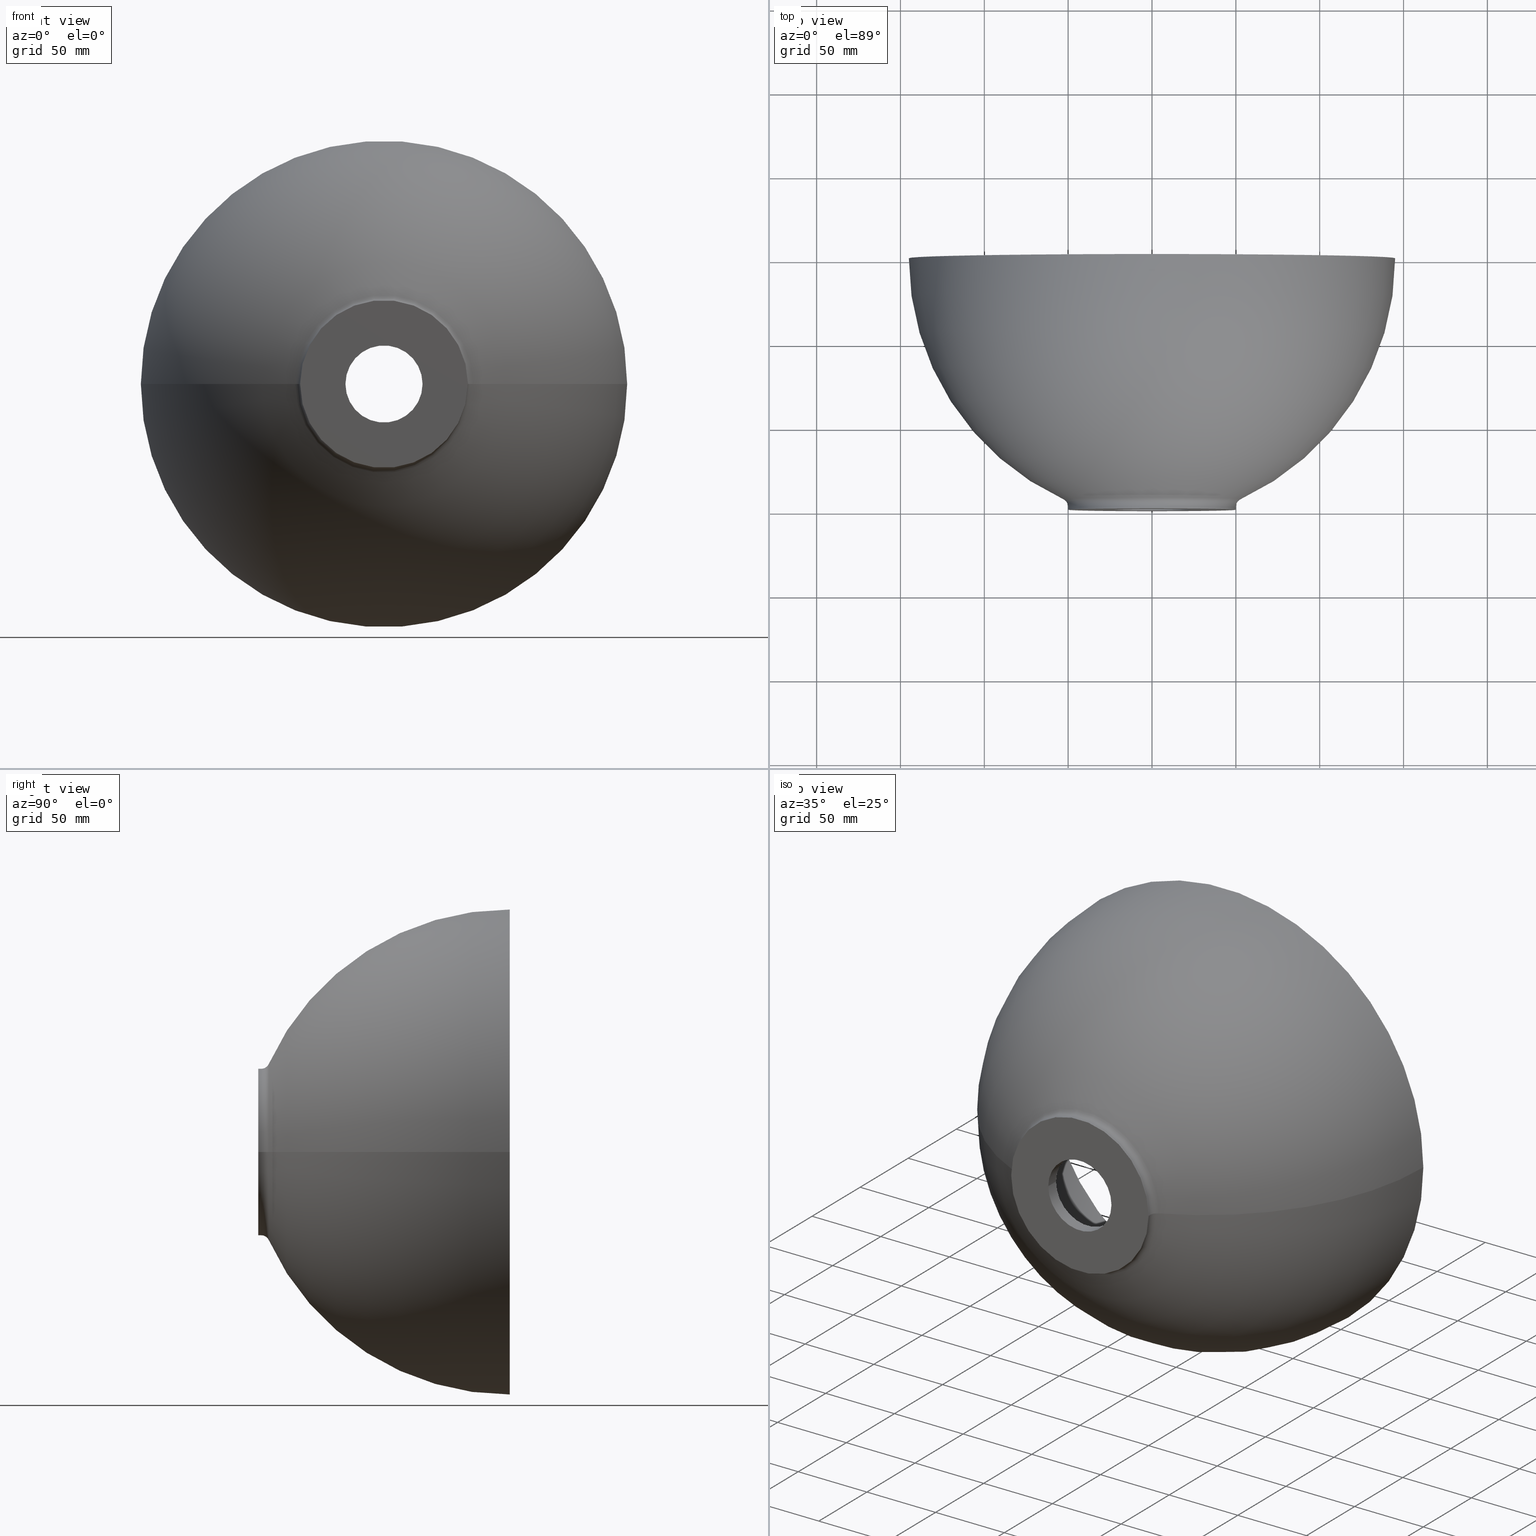
[diagram: canonical four-view strip — front | top / right | iso, engineering-drawing reading convention]
A machine part, canonical four-view strip (front | top / right | iso — engineering-drawing reading convention). The complete STEP part file that produces these views, byte-faithful:
ISO-10303-21;
HEADER;
FILE_DESCRIPTION (( 'STEP AP214' ),
    '1' );
FILE_NAME ('D781.STEP',
    '2018-06-29T09:14:27',
    ( '' ),
    ( '' ),
    'SwSTEP 2.0',
    'SolidWorks 2017',
    '' );
FILE_SCHEMA (( 'AUTOMOTIVE_DESIGN' ));
ENDSEC;

DATA;
#1 = EDGE_LOOP ( 'NONE', ( #169, #357, #145, #321 ) ) ;
#2 = FACE_OUTER_BOUND ( 'NONE', #385, .T. ) ;
#3 = DIRECTION ( 'NONE',  ( -1.104785946437366900E-016, 1.000000000000000000, -0.0000000000000000000 ) ) ;
#4 = ORIENTED_EDGE ( 'NONE', *, *, #17, .T. ) ;
#5 =( NAMED_UNIT ( * ) PLANE_ANGLE_UNIT ( ) SI_UNIT ( $, .RADIAN. ) );
#6 = PLANE ( 'NONE',  #151 ) ;
#7 = AXIS2_PLACEMENT_3D ( 'NONE', #152, #147, #189 ) ;
#8 = DIRECTION ( 'NONE',  ( -1.000000000000000000, -1.104785946437366800E-016, 0.0000000000000000000 ) ) ;
#9 = MECHANICAL_DESIGN_GEOMETRIC_PRESENTATION_REPRESENTATION (  '', ( #337 ), #137 ) ;
#10 = AXIS2_PLACEMENT_3D ( 'NONE', #72, #347, #66 ) ;
#11 = CARTESIAN_POINT ( 'NONE',  ( -2.694001388746047700E-015, 150.0000000000000300, 0.0000000000000000000 ) ) ;
#12 = DIRECTION ( 'NONE',  ( -1.000000000000000000, 0.0000000000000000000, 0.0000000000000000000 ) ) ;
#13 = CARTESIAN_POINT ( 'NONE',  ( 50.00000000000001400, 125.6151732610876800, 6.123233995736767700E-015 ) ) ;
#14 = ORIENTED_EDGE ( 'NONE', *, *, #96, .T. ) ;
#15 = DIRECTION ( 'NONE',  ( -1.104785946437366900E-016, 1.000000000000000000, -0.0000000000000000000 ) ) ;
#16 = DIRECTION ( 'NONE',  ( -1.224646799147353200E-016, -1.352972573047500600E-032, 1.000000000000000000 ) ) ;
#17 = EDGE_CURVE ( 'NONE', #97, #302, #68, .T. ) ;
#18 = CARTESIAN_POINT ( 'NONE',  ( 13.15789473684205600, 150.0000000000000000, 0.0000000000000000000 ) ) ;
#19 = CARTESIAN_POINT ( 'NONE',  ( 0.0000000000000000000, 125.6151732610876800, 0.0000000000000000000 ) ) ;
#20 =( NAMED_UNIT ( * ) SI_UNIT ( $, .STERADIAN. ) SOLID_ANGLE_UNIT ( ) );
#21 = EDGE_CURVE ( 'NONE', #97, #391, #175, .T. ) ;
#22 = ORIENTED_EDGE ( 'NONE', *, *, #266, .T. ) ;
#23 = DIRECTION ( 'NONE',  ( -1.104785946437366900E-016, 1.000000000000000000, -0.0000000000000000000 ) ) ;
#24 = CIRCLE ( 'NONE', #113, 23.00000000000003600 ) ;
#25 = CARTESIAN_POINT ( 'NONE',  ( -50.00000000000001400, 125.6151732610876800, 0.0000000000000000000 ) ) ;
#26 = VERTEX_POINT ( 'NONE', #292 ) ;
#27 = CIRCLE ( 'NONE', #313, 5.000000000000004400 ) ;
#28 =( LENGTH_UNIT ( ) NAMED_UNIT ( * ) SI_UNIT ( .MILLI., .METRE. ) );
#29 = ORIENTED_EDGE ( 'NONE', *, *, #252, .F. ) ;
#30 = EDGE_CURVE ( 'NONE', #140, #121, #24, .T. ) ;
#31 = APPLICATION_PROTOCOL_DEFINITION ( 'draft international standard', 'automotive_design', 1998, #271 ) ;
#32 = PRESENTATION_STYLE_ASSIGNMENT (( #428 ) ) ;
#33 = FACE_OUTER_BOUND ( 'NONE', #340, .T. ) ;
#34 = COLOUR_RGB ( '',1.000000000000000000, 1.000000000000000000, 1.000000000000000000 ) ;
#35 = TOROIDAL_SURFACE ( 'NONE', #177, -13.15789473684206000, 158.1578947368420800 ) ;
#36 = EDGE_CURVE ( 'NONE', #220, #200, #27, .T. ) ;
#37 = TOROIDAL_SURFACE ( 'NONE', #82, -13.15789473684206000, 158.1578947368420800 ) ;
#38 = APPLICATION_PROTOCOL_DEFINITION ( 'draft international standard', 'automotive_design', 1998, #403 ) ;
#39 = APPLICATION_PROTOCOL_DEFINITION ( 'draft international standard', 'automotive_design', 1998, #305 ) ;
#40 = PLANE ( 'NONE',  #228 ) ;
#41 = ORIENTED_EDGE ( 'NONE', *, *, #374, .T. ) ;
#42 = EDGE_LOOP ( 'NONE', ( #213, #398, #46, #306 ) ) ;
#43 = EDGE_CURVE ( 'NONE', #109, #384, #349, .T. ) ;
#44 = DIRECTION ( 'NONE',  ( -1.000000000000000000, 0.0000000000000000000, 0.0000000000000000000 ) ) ;
#45 = DIRECTION ( 'NONE',  ( -1.104785946437366900E-016, 1.000000000000000000, -0.0000000000000000000 ) ) ;
#46 = ORIENTED_EDGE ( 'NONE', *, *, #96, .F. ) ;
#47 = CYLINDRICAL_SURFACE ( 'NONE', #245, 23.00000000000003200 ) ;
#48 = CIRCLE ( 'NONE', #101, 50.00000000000000000 ) ;
#49 = VECTOR ( 'NONE', #291, 1000.000000000000000 ) ;
#50 = EDGE_CURVE ( 'NONE', #121, #251, #110, .T. ) ;
#51 = DIRECTION ( 'NONE',  ( -1.104785946437366900E-016, 1.000000000000000000, -0.0000000000000000000 ) ) ;
#52 = EDGE_LOOP ( 'NONE', ( #70, #243, #74, #206 ) ) ;
#53 = CARTESIAN_POINT ( 'NONE',  ( 1.299395905066456400E-014, 7.999999999999992900, 0.0000000000000000000 ) ) ;
#54 = DIRECTION ( 'NONE',  ( -1.000000000000000000, -1.104785946437366900E-016, 0.0000000000000000000 ) ) ;
#55 = CARTESIAN_POINT ( 'NONE',  ( -7.504765230840313900, 150.0000000000000000, -9.190686718300936100E-016 ) ) ;
#56 = AXIS2_PLACEMENT_3D ( 'NONE', #19, #45, #12 ) ;
#57 = DIRECTION ( 'NONE',  ( -1.104785946437366900E-016, 1.000000000000000000, -0.0000000000000000000 ) ) ;
#58 = ADVANCED_BREP_SHAPE_REPRESENTATION ( 'D781', ( #268, #179 ), #432 ) ;
#59 = EDGE_LOOP ( 'NONE', ( #324, #60, #155, #260 ) ) ;
#60 = ORIENTED_EDGE ( 'NONE', *, *, #352, .T. ) ;
#61 = ORIENTED_EDGE ( 'NONE', *, *, #50, .T. ) ;
#62 = PRODUCT_DEFINITION_SHAPE ( 'NONE', 'NONE',  #69 ) ;
#63 = CIRCLE ( 'NONE', #412, 137.5047652308402600 ) ;
#64 = DIRECTION ( 'NONE',  ( -1.000000000000000000, -1.104785946437366800E-016, 0.0000000000000000000 ) ) ;
#65 = FACE_OUTER_BOUND ( 'NONE', #161, .T. ) ;
#66 = DIRECTION ( 'NONE',  ( -1.000000000000000000, -1.914177628664062900E-016, 0.0000000000000000000 ) ) ;
#67 = VECTOR ( 'NONE', #426, 1000.000000000000200 ) ;
#68 = CIRCLE ( 'NONE', #117, 158.1578947368420800 ) ;
#69 = PRODUCT_DEFINITION ( 'UNKNOWN', '', #312, #297 ) ;
#70 = ORIENTED_EDGE ( 'NONE', *, *, #123, .F. ) ;
#71 = EDGE_CURVE ( 'NONE', #220, #375, #114, .T. ) ;
#72 = CARTESIAN_POINT ( 'NONE',  ( -2.694001388746047700E-015, 150.0000000000000300, 0.0000000000000000000 ) ) ;
#73 = DIRECTION ( 'NONE',  ( -1.000000000000000000, -1.084202172485503900E-016, 0.0000000000000000000 ) ) ;
#74 = ORIENTED_EDGE ( 'NONE', *, *, #317, .T. ) ;
#75 = CLOSED_SHELL ( 'NONE', ( #365, #319, #98, #236, #229, #254, #223, #332, #182, #322, #294, #427, #386, #85 ) ) ;
#76 = PRODUCT ( 'D781', 'D781', '', ( #102 ) ) ;
#77 = ORIENTED_EDGE ( 'NONE', *, *, #106, .F. ) ;
#78 = DIRECTION ( 'NONE',  ( 0.0000000000000000000, 0.0000000000000000000, 1.000000000000000000 ) ) ;
#79 = FACE_OUTER_BOUND ( 'NONE', #52, .T. ) ;
#80 = EDGE_LOOP ( 'NONE', ( #202, #336, #61, #234 ) ) ;
#81 = PRODUCT_RELATED_PRODUCT_CATEGORY ( 'part', '', ( #76 ) ) ;
#82 = AXIS2_PLACEMENT_3D ( 'NONE', #431, #275, #435 ) ;
#83 = CARTESIAN_POINT ( 'NONE',  ( -37.30104311104391700, 19.99999999992751800, 0.0000000000000000000 ) ) ;
#84 = DIRECTION ( 'NONE',  ( -1.224646799147353200E-016, -1.352972573047500600E-032, 1.000000000000000000 ) ) ;
#85 = ADVANCED_FACE ( 'NONE', ( #217 ), #214, .F. ) ;
#86 = DIRECTION ( 'NONE',  ( -1.000000000000000000, -1.104785946437366900E-016, 0.0000000000000000000 ) ) ;
#87 = CARTESIAN_POINT ( 'NONE',  ( -49.99999999999998600, -5.523929732186834300E-015, 0.0000000000000000000 ) ) ;
#88 = ORIENTED_EDGE ( 'NONE', *, *, #30, .T. ) ;
#89 = EDGE_LOOP ( 'NONE', ( #77, #153, #22, #135 ) ) ;
#90 = ORIENTED_EDGE ( 'NONE', *, *, #334, .F. ) ;
#91 = CARTESIAN_POINT ( 'NONE',  ( 50.00000000000001400, 5.523929732186834300E-015, 6.123233995736766900E-015 ) ) ;
#92 = CONICAL_SURFACE ( 'NONE', #125, 23.00000000000003600, 0.8726646259971560000 ) ;
#93 = CARTESIAN_POINT ( 'NONE',  ( 52.91129032258075400, 6.303157817668914500, 1.211857141043355500E-014 ) ) ;
#94 = CIRCLE ( 'NONE', #204, 23.00000000000002800 ) ;
#95 = CARTESIAN_POINT ( 'NONE',  ( 129.9999999999999400, 150.0000000000000600, 1.592040838891558800E-014 ) ) ;
#96 = EDGE_CURVE ( 'NONE', #200, #391, #129, .T. ) ;
#97 = VERTEX_POINT ( 'NONE', #93 ) ;
#98 = ADVANCED_FACE ( 'NONE', ( #65 ), #130, .F. ) ;
#99 = SURFACE_STYLE_FILL_AREA ( #361 ) ;
#100 = CARTESIAN_POINT ( 'NONE',  ( 23.00000000000005000, 7.999999999999994700, 2.816687638038917100E-015 ) ) ;
#101 = AXIS2_PLACEMENT_3D ( 'NONE', #369, #23, #54 ) ;
#102 = PRODUCT_CONTEXT ( 'NONE', #403, 'mechanical' ) ;
#103 = AXIS2_PLACEMENT_3D ( 'NONE', #263, #333, #348 ) ;
#104 = CIRCLE ( 'NONE', #142, 37.30104311104393100 ) ;
#105 = UNCERTAINTY_MEASURE_WITH_UNIT (LENGTH_MEASURE( 1.000000000000000100E-005 ), #122, 'distance_accuracy_value', 'NONE');
#106 = EDGE_CURVE ( 'NONE', #26, #109, #63, .T. ) ;
#107 = ORIENTED_EDGE ( 'NONE', *, *, #170, .F. ) ;
#108 = DIRECTION ( 'NONE',  ( -1.104785946437366900E-016, 1.000000000000000000, 0.0000000000000000000 ) ) ;
#109 = VERTEX_POINT ( 'NONE', #95 ) ;
#110 = LINE ( 'NONE', #154, #67 ) ;
#111 = EDGE_CURVE ( 'NONE', #282, #212, #247, .T. ) ;
#112 = ORIENTED_EDGE ( 'NONE', *, *, #198, .F. ) ;
#113 = AXIS2_PLACEMENT_3D ( 'NONE', #158, #329, #286 ) ;
#114 = CIRCLE ( 'NONE', #405, 158.1578947368420800 ) ;
#115 = TOROIDAL_SURFACE ( 'NONE', #248, 55.00000000000002800, 5.000000000000002700 ) ;
#116 = FILL_AREA_STYLE_COLOUR ( '', #34 ) ;
#117 = AXIS2_PLACEMENT_3D ( 'NONE', #382, #84, #327 ) ;
#118 = CARTESIAN_POINT ( 'NONE',  ( 0.0000000000000000000, 125.6151732610876800, 0.0000000000000000000 ) ) ;
#119 = EDGE_CURVE ( 'NONE', #302, #375, #149, .T. ) ;
#120 = CARTESIAN_POINT ( 'NONE',  ( -2.694001388746050500E-015, 150.0000000000000300, 0.0000000000000000000 ) ) ;
#121 = VERTEX_POINT ( 'NONE', #366 ) ;
#122 =( LENGTH_UNIT ( ) NAMED_UNIT ( * ) SI_UNIT ( .MILLI., .METRE. ) );
#123 = EDGE_CURVE ( 'NONE', #282, #391, #192, .T. ) ;
#124 = DIRECTION ( 'NONE',  ( -1.104785946437366900E-016, 1.000000000000000000, -0.0000000000000000000 ) ) ;
#125 = AXIS2_PLACEMENT_3D ( 'NONE', #373, #350, #235 ) ;
#126 = CARTESIAN_POINT ( 'NONE',  ( -23.00000000000001400, -2.541007676805946600E-015, 0.0000000000000000000 ) ) ;
#127 = CARTESIAN_POINT ( 'NONE',  ( 23.00000000000003200, 125.6151732610876800, 2.816687638038916300E-015 ) ) ;
#128 = AXIS2_PLACEMENT_3D ( 'NONE', #363, #15, #190 ) ;
#129 = CIRCLE ( 'NONE', #128, 50.00000000000002100 ) ;
#130 = TOROIDAL_SURFACE ( 'NONE', #193, -7.504765230840311200, 137.5047652308402600 ) ;
#131 = EDGE_LOOP ( 'NONE', ( #387, #261, #88, #178 ) ) ;
#132 = DIRECTION ( 'NONE',  ( -1.104785946437366900E-016, 1.000000000000000000, -0.0000000000000000000 ) ) ;
#133 = FACE_OUTER_BOUND ( 'NONE', #59, .T. ) ;
#134 = CARTESIAN_POINT ( 'NONE',  ( 1.166821591494773100E-014, 19.99999999992752100, 0.0000000000000000000 ) ) ;
#135 = ORIENTED_EDGE ( 'NONE', *, *, #198, .T. ) ;
#136 = DIRECTION ( 'NONE',  ( -1.000000000000000000, -1.147492742834831600E-016, 0.0000000000000000000 ) ) ;
#137 =( GEOMETRIC_REPRESENTATION_CONTEXT ( 3 ) GLOBAL_UNCERTAINTY_ASSIGNED_CONTEXT ( ( #196 ) ) GLOBAL_UNIT_ASSIGNED_CONTEXT ( ( #28, #5, #199 ) ) REPRESENTATION_CONTEXT ( 'NONE', 'WORKASPACE' ) );
#138 = CIRCLE ( 'NONE', #256, 52.91129032258073300 ) ;
#139 = EDGE_CURVE ( 'NONE', #220, #97, #138, .T. ) ;
#140 = VERTEX_POINT ( 'NONE', #100 ) ;
#141 = DIRECTION ( 'NONE',  ( -1.104785946437366900E-016, 1.000000000000000000, -0.0000000000000000000 ) ) ;
#142 = AXIS2_PLACEMENT_3D ( 'NONE', #134, #141, #166 ) ;
#143 = ORIENTED_EDGE ( 'NONE', *, *, #36, .F. ) ;
#144 = ORIENTED_EDGE ( 'NONE', *, *, #71, .F. ) ;
#145 = ORIENTED_EDGE ( 'NONE', *, *, #334, .T. ) ;
#146 = ORIENTED_EDGE ( 'NONE', *, *, #139, .F. ) ;
#147 = DIRECTION ( 'NONE',  ( -1.224646799147353200E-016, -1.352972573047500600E-032, 1.000000000000000000 ) ) ;
#148 = FACE_OUTER_BOUND ( 'NONE', #131, .T. ) ;
#149 = CIRCLE ( 'NONE', #284, 145.0000000000000000 ) ;
#150 = CARTESIAN_POINT ( 'NONE',  ( 1.299395905066456400E-014, 7.999999999999992900, 0.0000000000000000000 ) ) ;
#151 = AXIS2_PLACEMENT_3D ( 'NONE', #176, #207, #343 ) ;
#152 = CARTESIAN_POINT ( 'NONE',  ( 55.00000000000004300, 1.760329196264059500, 6.735557395310446600E-015 ) ) ;
#153 = ORIENTED_EDGE ( 'NONE', *, *, #315, .F. ) ;
#154 = CARTESIAN_POINT ( 'NONE',  ( -23.00000000000002100, 7.999999999999991100, 0.0000000000000000000 ) ) ;
#155 = ORIENTED_EDGE ( 'NONE', *, *, #71, .T. ) ;
#156 = ORIENTED_EDGE ( 'NONE', *, *, #399, .T. ) ;
#157 = CARTESIAN_POINT ( 'NONE',  ( 1.387778780781445700E-014, 1.760329196264053300, 0.0000000000000000000 ) ) ;
#158 = CARTESIAN_POINT ( 'NONE',  ( 1.299395905066456400E-014, 7.999999999999992900, 0.0000000000000000000 ) ) ;
#159 = VECTOR ( 'NONE', #326, 1000.000000000000200 ) ;
#160 = VERTEX_POINT ( 'NONE', #320 ) ;
#161 = EDGE_LOOP ( 'NONE', ( #90, #346, #362, #411 ) ) ;
#162 = DIRECTION ( 'NONE',  ( -1.000000000000000000, -1.104785946437366800E-016, 0.0000000000000000000 ) ) ;
#163 = LINE ( 'NONE', #25, #231 ) ;
#164 = LINE ( 'NONE', #127, #290 ) ;
#165 = AXIS2_PLACEMENT_3D ( 'NONE', #401, #413, #86 ) ;
#166 = DIRECTION ( 'NONE',  ( -1.000000000000000000, -9.301206246766850400E-017, 0.0000000000000000000 ) ) ;
#167 = ORIENTED_EDGE ( 'NONE', *, *, #43, .F. ) ;
#168 = SURFACE_STYLE_USAGE ( .BOTH. , #174 ) ;
#169 = ORIENTED_EDGE ( 'NONE', *, *, #30, .F. ) ;
#170 = EDGE_CURVE ( 'NONE', #249, #160, #94, .T. ) ;
#171 = LINE ( 'NONE', #288, #270 ) ;
#172 = CARTESIAN_POINT ( 'NONE',  ( 50.00000000000004300, 1.760329196264057000, 6.123233995736769200E-015 ) ) ;
#173 = AXIS2_PLACEMENT_3D ( 'NONE', #356, #383, #44 ) ;
#174 = SURFACE_SIDE_STYLE ('',( #380 ) ) ;
#175 = CIRCLE ( 'NONE', #7, 5.000000000000004400 ) ;
#176 = CARTESIAN_POINT ( 'NONE',  ( -23.00000000000001400, -1.153895334038977400E-015, 0.0000000000000000000 ) ) ;
#177 = AXIS2_PLACEMENT_3D ( 'NONE', #339, #400, #162 ) ;
#178 = ORIENTED_EDGE ( 'NONE', *, *, #273, .F. ) ;
#179 = AXIS2_PLACEMENT_3D ( 'NONE', #396, #78, #241 ) ;
#180 = FACE_OUTER_BOUND ( 'NONE', #244, .T. ) ;
#181 = AXIS2_PLACEMENT_3D ( 'NONE', #118, #379, #226 ) ;
#182 = ADVANCED_FACE ( 'NONE', ( #222 ), #47, .F. ) ;
#183 = CIRCLE ( 'NONE', #218, 137.5047652308402600 ) ;
#184 = DIRECTION ( 'NONE',  ( -1.104785946437366900E-016, 1.000000000000000000, -0.0000000000000000000 ) ) ;
#185 = FACE_OUTER_BOUND ( 'NONE', #397, .T. ) ;
#186 = AXIS2_PLACEMENT_3D ( 'NONE', #410, #194, #304 ) ;
#187 = ORIENTED_EDGE ( 'NONE', *, *, #21, .F. ) ;
#188 = PRESENTATION_LAYER_ASSIGNMENT (  '', '', ( #238 ) ) ;
#189 = DIRECTION ( 'NONE',  ( 1.000000000000000000, 0.0000000000000000000, 1.224646799147352500E-016 ) ) ;
#190 = DIRECTION ( 'NONE',  ( -1.000000000000000000, -1.084202172485503900E-016, 0.0000000000000000000 ) ) ;
#191 = DIRECTION ( 'NONE',  ( -1.000000000000000000, -1.104785946437366900E-016, 0.0000000000000000000 ) ) ;
#192 = LINE ( 'NONE', #13, #49 ) ;
#193 = AXIS2_PLACEMENT_3D ( 'NONE', #325, #184, #8 ) ;
#194 = DIRECTION ( 'NONE',  ( 0.0000000000000000000, 0.0000000000000000000, 1.000000000000000000 ) ) ;
#195 = CARTESIAN_POINT ( 'NONE',  ( 1.387778780781445700E-014, 0.0000000000000000000, 0.0000000000000000000 ) ) ;
#196 = UNCERTAINTY_MEASURE_WITH_UNIT (LENGTH_MEASURE( 1.000000000000000100E-005 ), #28, 'distance_accuracy_value', 'NONE');
#197 = PRODUCT_RELATED_PRODUCT_CATEGORY ( 'part', '', ( #303 ) ) ;
#198 = EDGE_CURVE ( 'NONE', #384, #109, #406, .T. ) ;
#199 =( NAMED_UNIT ( * ) SI_UNIT ( $, .STERADIAN. ) SOLID_ANGLE_UNIT ( ) );
#200 = VERTEX_POINT ( 'NONE', #277 ) ;
#201 = PRODUCT_CONTEXT ( 'NONE', #271, 'mechanical' ) ;
#202 = ORIENTED_EDGE ( 'NONE', *, *, #276, .F. ) ;
#203 = ORIENTED_EDGE ( 'NONE', *, *, #278, .T. ) ;
#204 = AXIS2_PLACEMENT_3D ( 'NONE', #355, #360, #64 ) ;
#205 = APPLICATION_PROTOCOL_DEFINITION ( 'draft international standard', 'automotive_design', 1998, #272 ) ;
#206 = ORIENTED_EDGE ( 'NONE', *, *, #240, .F. ) ;
#207 = DIRECTION ( 'NONE',  ( 1.104785946437366900E-016, -1.000000000000000000, 0.0000000000000000000 ) ) ;
#208 = AXIS2_PLACEMENT_3D ( 'NONE', #358, #345, #73 ) ;
#209 = CARTESIAN_POINT ( 'NONE',  ( -129.9999999999999400, 150.0000000000000000, 0.0000000000000000000 ) ) ;
#210 = AXIS2_PLACEMENT_3D ( 'NONE', #157, #419, #191 ) ;
#211 = DIRECTION ( 'NONE',  ( -1.104785946437366900E-016, 1.000000000000000000, -0.0000000000000000000 ) ) ;
#212 = VERTEX_POINT ( 'NONE', #87 ) ;
#213 = ORIENTED_EDGE ( 'NONE', *, *, #252, .T. ) ;
#214 = TOROIDAL_SURFACE ( 'NONE', #210, 55.00000000000002800, 5.000000000000002700 ) ;
#215 = CIRCLE ( 'NONE', #264, 23.00000000000003600 ) ;
#216 = MECHANICAL_DESIGN_GEOMETRIC_PRESENTATION_REPRESENTATION (  '', ( #238 ), #221 ) ;
#217 = FACE_OUTER_BOUND ( 'NONE', #341, .T. ) ;
#218 = AXIS2_PLACEMENT_3D ( 'NONE', #416, #389, #388 ) ;
#219 = DIRECTION ( 'NONE',  ( -1.104785946437366900E-016, 1.000000000000000000, -0.0000000000000000000 ) ) ;
#220 = VERTEX_POINT ( 'NONE', #422 ) ;
#221 =( GEOMETRIC_REPRESENTATION_CONTEXT ( 3 ) GLOBAL_UNCERTAINTY_ASSIGNED_CONTEXT ( ( #105 ) ) GLOBAL_UNIT_ASSIGNED_CONTEXT ( ( #122, #392, #20 ) ) REPRESENTATION_CONTEXT ( 'NONE', 'WORKASPACE' ) );
#222 = FACE_OUTER_BOUND ( 'NONE', #262, .T. ) ;
#223 = ADVANCED_FACE ( 'NONE', ( #79 ), #239, .T. ) ;
#224 = CYLINDRICAL_SURFACE ( 'NONE', #56, 23.00000000000003200 ) ;
#225 = PRODUCT_DEFINITION_CONTEXT ( 'detailed design', #272, 'design' ) ;
#226 = DIRECTION ( 'NONE',  ( -1.000000000000000000, 0.0000000000000000000, 0.0000000000000000000 ) ) ;
#227 = PRODUCT_DEFINITION_FORMATION_WITH_SPECIFIED_SOURCE ( 'ANY', '', #303, .NOT_KNOWN. ) ;
#228 = AXIS2_PLACEMENT_3D ( 'NONE', #308, #108, #372 ) ;
#229 = ADVANCED_FACE ( 'NONE', ( #148 ), #224, .F. ) ;
#230 = CARTESIAN_POINT ( 'NONE',  ( -55.00000000000001400, 1.760329196264047300, 0.0000000000000000000 ) ) ;
#231 = VECTOR ( 'NONE', #377, 1000.000000000000000 ) ;
#232 = AXIS2_PLACEMENT_3D ( 'NONE', #434, #3, #136 ) ;
#233 = PRESENTATION_STYLE_ASSIGNMENT (( #168 ) ) ;
#234 = ORIENTED_EDGE ( 'NONE', *, *, #315, .T. ) ;
#235 = DIRECTION ( 'NONE',  ( -1.000000000000000000, -7.542275982507844800E-017, 0.0000000000000000000 ) ) ;
#236 = ADVANCED_FACE ( 'NONE', ( #289 ), #255, .F. ) ;
#237 = FACE_OUTER_BOUND ( 'NONE', #89, .T. ) ;
#238 = STYLED_ITEM ( 'NONE', ( #32 ), #268 ) ;
#239 = CYLINDRICAL_SURFACE ( 'NONE', #173, 50.00000000000001400 ) ;
#240 = EDGE_CURVE ( 'NONE', #391, #200, #376, .T. ) ;
#241 = DIRECTION ( 'NONE',  ( 1.000000000000000000, 0.0000000000000000000, 0.0000000000000000000 ) ) ;
#242 = AXIS2_PLACEMENT_3D ( 'NONE', #316, #57, #311 ) ;
#243 = ORIENTED_EDGE ( 'NONE', *, *, #111, .T. ) ;
#244 = EDGE_LOOP ( 'NONE', ( #41, #351 ) ) ;
#245 = AXIS2_PLACEMENT_3D ( 'NONE', #301, #323, #390 ) ;
#246 = FILL_AREA_STYLE_COLOUR ( '', #402 ) ;
#247 = CIRCLE ( 'NONE', #165, 50.00000000000000000 ) ;
#248 = AXIS2_PLACEMENT_3D ( 'NONE', #378, #132, #314 ) ;
#249 = VERTEX_POINT ( 'NONE', #126 ) ;
#250 = ORIENTED_EDGE ( 'NONE', *, *, #36, .T. ) ;
#251 = VERTEX_POINT ( 'NONE', #83 ) ;
#252 = EDGE_CURVE ( 'NONE', #212, #282, #48, .T. ) ;
#253 = TOROIDAL_SURFACE ( 'NONE', #103, -7.504765230840311200, 137.5047652308402600 ) ;
#254 = ADVANCED_FACE ( 'NONE', ( #259 ), #309, .T. ) ;
#255 = CONICAL_SURFACE ( 'NONE', #310, 23.00000000000003600, 0.8726646259971560000 ) ;
#256 = AXIS2_PLACEMENT_3D ( 'NONE', #295, #430, #338 ) ;
#257 = ORIENTED_EDGE ( 'NONE', *, *, #21, .T. ) ;
#258 = DIRECTION ( 'NONE',  ( -1.000000000000000000, -2.135044278125302100E-016, 0.0000000000000000000 ) ) ;
#259 = FACE_OUTER_BOUND ( 'NONE', #42, .T. ) ;
#260 = ORIENTED_EDGE ( 'NONE', *, *, #119, .F. ) ;
#261 = ORIENTED_EDGE ( 'NONE', *, *, #425, .T. ) ;
#262 = EDGE_LOOP ( 'NONE', ( #415, #107, #307, #203 ) ) ;
#263 = CARTESIAN_POINT ( 'NONE',  ( -2.602085213965210600E-015, 150.0000000000000000, 0.0000000000000000000 ) ) ;
#264 = AXIS2_PLACEMENT_3D ( 'NONE', #53, #298, #364 ) ;
#265 =( NAMED_UNIT ( * ) PLANE_ANGLE_UNIT ( ) SI_UNIT ( $, .RADIAN. ) );
#266 = EDGE_CURVE ( 'NONE', #251, #384, #183, .T. ) ;
#267 = DIRECTION ( 'NONE',  ( -1.000000000000000000, -1.104785946437366800E-016, 0.0000000000000000000 ) ) ;
#268 = MANIFOLD_SOLID_BREP ( 'Rotation1', #75 ) ;
#269 = ORIENTED_EDGE ( 'NONE', *, *, #240, .T. ) ;
#270 = VECTOR ( 'NONE', #414, 1000.000000000000000 ) ;
#271 = APPLICATION_CONTEXT ( 'automotive_design' ) ;
#272 = APPLICATION_CONTEXT ( 'automotive_design' ) ;
#273 = EDGE_CURVE ( 'NONE', #249, #121, #171, .T. ) ;
#274 = FACE_BOUND ( 'NONE', #280, .T. ) ;
#275 = DIRECTION ( 'NONE',  ( -1.104785946437366900E-016, 1.000000000000000000, -0.0000000000000000000 ) ) ;
#276 = EDGE_CURVE ( 'NONE', #140, #26, #299, .T. ) ;
#277 = CARTESIAN_POINT ( 'NONE',  ( -50.00000000000000700, 1.760329196264046200, 0.0000000000000000000 ) ) ;
#278 = EDGE_CURVE ( 'NONE', #121, #140, #215, .T. ) ;
#279 = DIRECTION ( 'NONE',  ( -1.000000000000000000, -2.135044278125302100E-016, 0.0000000000000000000 ) ) ;
#280 = EDGE_LOOP ( 'NONE', ( #293, #156 ) ) ;
#281 = ORIENTED_EDGE ( 'NONE', *, *, #374, .F. ) ;
#282 = VERTEX_POINT ( 'NONE', #91 ) ;
#283 = DIRECTION ( 'NONE',  ( -1.000000000000000000, -7.542275982507844800E-017, 0.0000000000000000000 ) ) ;
#284 = AXIS2_PLACEMENT_3D ( 'NONE', #11, #51, #395 ) ;
#285 = PRODUCT_DEFINITION_SHAPE ( 'NONE', 'NONE',  #367 ) ;
#286 = DIRECTION ( 'NONE',  ( -1.000000000000000000, -7.542275982507844800E-017, 0.0000000000000000000 ) ) ;
#287 = CIRCLE ( 'NONE', #393, 23.00000000000002800 ) ;
#288 = CARTESIAN_POINT ( 'NONE',  ( -23.00000000000003200, 125.6151732610876800, 0.0000000000000000000 ) ) ;
#289 = FACE_OUTER_BOUND ( 'NONE', #1, .T. ) ;
#290 = VECTOR ( 'NONE', #407, 1000.000000000000000 ) ;
#291 = DIRECTION ( 'NONE',  ( -1.104785946437366900E-016, 1.000000000000000000, -0.0000000000000000000 ) ) ;
#292 = CARTESIAN_POINT ( 'NONE',  ( 37.30104311104394600, 19.99999999992752500, 4.568060305079737500E-015 ) ) ;
#293 = ORIENTED_EDGE ( 'NONE', *, *, #170, .T. ) ;
#294 = ADVANCED_FACE ( 'NONE', ( #237 ), #253, .F. ) ;
#295 = CARTESIAN_POINT ( 'NONE',  ( 1.318142379030071500E-014, 6.303157817668908300, 0.0000000000000000000 ) ) ;
#296 = AXIS2_PLACEMENT_3D ( 'NONE', #120, #219, #258 ) ;
#297 = PRODUCT_DEFINITION_CONTEXT ( 'detailed design', #305, 'design' ) ;
#298 = DIRECTION ( 'NONE',  ( -1.104785946437366900E-016, 1.000000000000000000, -0.0000000000000000000 ) ) ;
#299 = LINE ( 'NONE', #330, #159 ) ;
#300 = ORIENTED_EDGE ( 'NONE', *, *, #111, .F. ) ;
#301 = CARTESIAN_POINT ( 'NONE',  ( 0.0000000000000000000, 125.6151732610876800, 0.0000000000000000000 ) ) ;
#302 = VERTEX_POINT ( 'NONE', #370 ) ;
#303 = PRODUCT ( 'D781', 'D781', '', ( #201 ) ) ;
#304 = DIRECTION ( 'NONE',  ( 1.000000000000000000, 0.0000000000000000000, 0.0000000000000000000 ) ) ;
#305 = APPLICATION_CONTEXT ( 'automotive_design' ) ;
#306 = ORIENTED_EDGE ( 'NONE', *, *, #317, .F. ) ;
#307 = ORIENTED_EDGE ( 'NONE', *, *, #273, .T. ) ;
#308 = CARTESIAN_POINT ( 'NONE',  ( -145.0000000000000000, 150.0000000000000300, 0.0000000000000000000 ) ) ;
#309 = CYLINDRICAL_SURFACE ( 'NONE', #181, 50.00000000000001400 ) ;
#310 = AXIS2_PLACEMENT_3D ( 'NONE', #150, #423, #283 ) ;
#311 = DIRECTION ( 'NONE',  ( -1.000000000000000000, -9.301206246766850400E-017, 0.0000000000000000000 ) ) ;
#312 = PRODUCT_DEFINITION_FORMATION_WITH_SPECIFIED_SOURCE ( 'ANY', '', #76, .NOT_KNOWN. ) ;
#313 = AXIS2_PLACEMENT_3D ( 'NONE', #230, #424, #359 ) ;
#314 = DIRECTION ( 'NONE',  ( -1.000000000000000000, -1.104785946437366900E-016, 0.0000000000000000000 ) ) ;
#315 = EDGE_CURVE ( 'NONE', #251, #26, #417, .T. ) ;
#316 = CARTESIAN_POINT ( 'NONE',  ( 1.166821591494773100E-014, 19.99999999992752100, 0.0000000000000000000 ) ) ;
#317 = EDGE_CURVE ( 'NONE', #212, #200, #163, .T. ) ;
#318 = EDGE_LOOP ( 'NONE', ( #112, #167 ) ) ;
#319 = ADVANCED_FACE ( 'NONE', ( #33 ), #37, .T. ) ;
#320 = CARTESIAN_POINT ( 'NONE',  ( 23.00000000000004300, 2.541007676805946200E-015, 2.816687638038916300E-015 ) ) ;
#321 = ORIENTED_EDGE ( 'NONE', *, *, #50, .F. ) ;
#322 = ADVANCED_FACE ( 'NONE', ( #354 ), #92, .F. ) ;
#323 = DIRECTION ( 'NONE',  ( -1.104785946437366900E-016, 1.000000000000000000, -0.0000000000000000000 ) ) ;
#324 = ORIENTED_EDGE ( 'NONE', *, *, #17, .F. ) ;
#325 = CARTESIAN_POINT ( 'NONE',  ( -2.602085213965210600E-015, 150.0000000000000000, 0.0000000000000000000 ) ) ;
#326 = DIRECTION ( 'NONE',  ( 0.7660444431189723500, 0.6427876096865461400, 9.381338752702661800E-017 ) ) ;
#327 = DIRECTION ( 'NONE',  ( 1.000000000000000000, 0.0000000000000000000, 1.224646799147353200E-016 ) ) ;
#328 = CIRCLE ( 'NONE', #232, 52.91129032258073300 ) ;
#329 = DIRECTION ( 'NONE',  ( -1.104785946437366900E-016, 1.000000000000000000, -0.0000000000000000000 ) ) ;
#330 = CARTESIAN_POINT ( 'NONE',  ( 23.00000000000005000, 7.999999999999994700, 2.816687638038916700E-015 ) ) ;
#331 = ORIENTED_EDGE ( 'NONE', *, *, #352, .F. ) ;
#332 = ADVANCED_FACE ( 'NONE', ( #274, #2 ), #6, .T. ) ;
#333 = DIRECTION ( 'NONE',  ( -1.104785946437366900E-016, 1.000000000000000000, -0.0000000000000000000 ) ) ;
#334 = EDGE_CURVE ( 'NONE', #26, #251, #104, .T. ) ;
#335 = SURFACE_SIDE_STYLE ('',( #99 ) ) ;
#336 = ORIENTED_EDGE ( 'NONE', *, *, #278, .F. ) ;
#337 = STYLED_ITEM ( 'NONE', ( #233 ), #58 ) ;
#338 = DIRECTION ( 'NONE',  ( -1.000000000000000000, -1.147492742834831600E-016, 0.0000000000000000000 ) ) ;
#339 = CARTESIAN_POINT ( 'NONE',  ( -3.469446951953614200E-015, 150.0000000000000000, 0.0000000000000000000 ) ) ;
#340 = EDGE_LOOP ( 'NONE', ( #353, #4, #281, #144 ) ) ;
#341 = EDGE_LOOP ( 'NONE', ( #187, #146, #250, #14 ) ) ;
#342 =( NAMED_UNIT ( * ) SI_UNIT ( $, .STERADIAN. ) SOLID_ANGLE_UNIT ( ) );
#343 = DIRECTION ( 'NONE',  ( 1.000000000000000000, 1.104785946437366900E-016, 0.0000000000000000000 ) ) ;
#344 = CIRCLE ( 'NONE', #10, 145.0000000000000000 ) ;
#345 = DIRECTION ( 'NONE',  ( -1.104785946437366900E-016, 1.000000000000000000, -0.0000000000000000000 ) ) ;
#346 = ORIENTED_EDGE ( 'NONE', *, *, #106, .T. ) ;
#347 = DIRECTION ( 'NONE',  ( -1.104785946437366900E-016, 1.000000000000000000, -0.0000000000000000000 ) ) ;
#348 = DIRECTION ( 'NONE',  ( -1.000000000000000000, -1.104785946437366800E-016, 0.0000000000000000000 ) ) ;
#349 = CIRCLE ( 'NONE', #296, 129.9999999999999400 ) ;
#350 = DIRECTION ( 'NONE',  ( -1.104785946437366900E-016, 1.000000000000000000, -0.0000000000000000000 ) ) ;
#351 = ORIENTED_EDGE ( 'NONE', *, *, #119, .T. ) ;
#352 = EDGE_CURVE ( 'NONE', #97, #220, #328, .T. ) ;
#353 = ORIENTED_EDGE ( 'NONE', *, *, #139, .T. ) ;
#354 = FACE_OUTER_BOUND ( 'NONE', #80, .T. ) ;
#355 = CARTESIAN_POINT ( 'NONE',  ( 1.387778780781445700E-014, 0.0000000000000000000, 0.0000000000000000000 ) ) ;
#356 = CARTESIAN_POINT ( 'NONE',  ( 0.0000000000000000000, 125.6151732610876800, 0.0000000000000000000 ) ) ;
#357 = ORIENTED_EDGE ( 'NONE', *, *, #276, .T. ) ;
#358 = CARTESIAN_POINT ( 'NONE',  ( 1.368330911210086600E-014, 1.760329196264051700, 0.0000000000000000000 ) ) ;
#359 = DIRECTION ( 'NONE',  ( -1.000000000000000000, 0.0000000000000000000, 0.0000000000000000000 ) ) ;
#360 = DIRECTION ( 'NONE',  ( -1.104785946437366900E-016, 1.000000000000000000, -0.0000000000000000000 ) ) ;
#361 = FILL_AREA_STYLE ('',( #116 ) ) ;
#362 = ORIENTED_EDGE ( 'NONE', *, *, #43, .T. ) ;
#363 = CARTESIAN_POINT ( 'NONE',  ( 1.368330911210086600E-014, 1.760329196264051700, 0.0000000000000000000 ) ) ;
#364 = DIRECTION ( 'NONE',  ( -1.000000000000000000, -7.542275982507844800E-017, 0.0000000000000000000 ) ) ;
#365 = ADVANCED_FACE ( 'NONE', ( #185 ), #115, .F. ) ;
#366 = CARTESIAN_POINT ( 'NONE',  ( -23.00000000000002100, 7.999999999999991100, 0.0000000000000000000 ) ) ;
#367 = PRODUCT_DEFINITION ( 'UNKNOWN', '', #227, #225 ) ;
#368 = FACE_BOUND ( 'NONE', #318, .T. ) ;
#369 = CARTESIAN_POINT ( 'NONE',  ( 1.387778780781445700E-014, 0.0000000000000000000, 0.0000000000000000000 ) ) ;
#370 = CARTESIAN_POINT ( 'NONE',  ( 145.0000000000000300, 150.0000000000000600, 1.775737858763661900E-014 ) ) ;
#371 = PRESENTATION_LAYER_ASSIGNMENT (  '', '', ( #337 ) ) ;
#372 = DIRECTION ( 'NONE',  ( -1.000000000000000000, -1.104785946437366900E-016, 0.0000000000000000000 ) ) ;
#373 = CARTESIAN_POINT ( 'NONE',  ( 1.299395905066456400E-014, 7.999999999999992900, 0.0000000000000000000 ) ) ;
#374 = EDGE_CURVE ( 'NONE', #375, #302, #344, .T. ) ;
#375 = VERTEX_POINT ( 'NONE', #404 ) ;
#376 = CIRCLE ( 'NONE', #208, 50.00000000000002100 ) ;
#377 = DIRECTION ( 'NONE',  ( -1.104785946437366900E-016, 1.000000000000000000, -0.0000000000000000000 ) ) ;
#378 = CARTESIAN_POINT ( 'NONE',  ( 1.387778780781445700E-014, 1.760329196264053300, 0.0000000000000000000 ) ) ;
#379 = DIRECTION ( 'NONE',  ( -1.104785946437366900E-016, 1.000000000000000000, -0.0000000000000000000 ) ) ;
#380 = SURFACE_STYLE_FILL_AREA ( #433 ) ;
#381 = CARTESIAN_POINT ( 'NONE',  ( -2.694001388746050500E-015, 150.0000000000000300, 0.0000000000000000000 ) ) ;
#382 = CARTESIAN_POINT ( 'NONE',  ( -13.15789473684206400, 150.0000000000000000, -1.611377367299143200E-015 ) ) ;
#383 = DIRECTION ( 'NONE',  ( -1.104785946437366900E-016, 1.000000000000000000, -0.0000000000000000000 ) ) ;
#384 = VERTEX_POINT ( 'NONE', #209 ) ;
#385 = EDGE_LOOP ( 'NONE', ( #29, #300 ) ) ;
#386 = ADVANCED_FACE ( 'NONE', ( #133 ), #35, .T. ) ;
#387 = ORIENTED_EDGE ( 'NONE', *, *, #399, .F. ) ;
#388 = DIRECTION ( 'NONE',  ( -1.000000000000000000, 0.0000000000000000000, 0.0000000000000000000 ) ) ;
#389 = DIRECTION ( 'NONE',  ( 0.0000000000000000000, -0.0000000000000000000, -1.000000000000000000 ) ) ;
#390 = DIRECTION ( 'NONE',  ( -1.000000000000000000, 0.0000000000000000000, 0.0000000000000000000 ) ) ;
#391 = VERTEX_POINT ( 'NONE', #172 ) ;
#392 =( NAMED_UNIT ( * ) PLANE_ANGLE_UNIT ( ) SI_UNIT ( $, .RADIAN. ) );
#393 = AXIS2_PLACEMENT_3D ( 'NONE', #195, #211, #267 ) ;
#394 = DIRECTION ( 'NONE',  ( -1.000000000000000000, 0.0000000000000000000, 0.0000000000000000000 ) ) ;
#395 = DIRECTION ( 'NONE',  ( -1.000000000000000000, -1.914177628664062900E-016, 0.0000000000000000000 ) ) ;
#396 = CARTESIAN_POINT ( 'NONE',  ( 0.0000000000000000000, 0.0000000000000000000, 0.0000000000000000000 ) ) ;
#397 = EDGE_LOOP ( 'NONE', ( #331, #257, #269, #143 ) ) ;
#398 = ORIENTED_EDGE ( 'NONE', *, *, #123, .T. ) ;
#399 = EDGE_CURVE ( 'NONE', #160, #249, #287, .T. ) ;
#400 = DIRECTION ( 'NONE',  ( -1.104785946437366900E-016, 1.000000000000000000, -0.0000000000000000000 ) ) ;
#401 = CARTESIAN_POINT ( 'NONE',  ( 1.387778780781445700E-014, 0.0000000000000000000, 0.0000000000000000000 ) ) ;
#402 = COLOUR_RGB ( '',1.000000000000000000, 1.000000000000000000, 1.000000000000000000 ) ;
#403 = APPLICATION_CONTEXT ( 'automotive_design' ) ;
#404 = CARTESIAN_POINT ( 'NONE',  ( -145.0000000000000300, 150.0000000000000000, 0.0000000000000000000 ) ) ;
#405 = AXIS2_PLACEMENT_3D ( 'NONE', #18, #421, #394 ) ;
#406 = CIRCLE ( 'NONE', #418, 129.9999999999999400 ) ;
#407 = DIRECTION ( 'NONE',  ( -1.104785946437366900E-016, 1.000000000000000000, -0.0000000000000000000 ) ) ;
#408 = SHAPE_DEFINITION_REPRESENTATION ( #62, #58 ) ;
#409 =( LENGTH_UNIT ( ) NAMED_UNIT ( * ) SI_UNIT ( .MILLI., .METRE. ) );
#410 = CARTESIAN_POINT ( 'NONE',  ( 0.0000000000000000000, 0.0000000000000000000, 0.0000000000000000000 ) ) ;
#411 = ORIENTED_EDGE ( 'NONE', *, *, #266, .F. ) ;
#412 = AXIS2_PLACEMENT_3D ( 'NONE', #55, #16, #420 ) ;
#413 = DIRECTION ( 'NONE',  ( -1.104785946437366900E-016, 1.000000000000000000, -0.0000000000000000000 ) ) ;
#414 = DIRECTION ( 'NONE',  ( -1.104785946437366900E-016, 1.000000000000000000, -0.0000000000000000000 ) ) ;
#415 = ORIENTED_EDGE ( 'NONE', *, *, #425, .F. ) ;
#416 = CARTESIAN_POINT ( 'NONE',  ( 7.504765230840308600, 150.0000000000000000, 0.0000000000000000000 ) ) ;
#417 = CIRCLE ( 'NONE', #242, 37.30104311104393100 ) ;
#418 = AXIS2_PLACEMENT_3D ( 'NONE', #381, #124, #279 ) ;
#419 = DIRECTION ( 'NONE',  ( -1.104785946437366900E-016, 1.000000000000000000, -0.0000000000000000000 ) ) ;
#420 = DIRECTION ( 'NONE',  ( 1.000000000000000000, 0.0000000000000000000, 1.224646799147353200E-016 ) ) ;
#421 = DIRECTION ( 'NONE',  ( 0.0000000000000000000, -0.0000000000000000000, -1.000000000000000000 ) ) ;
#422 = CARTESIAN_POINT ( 'NONE',  ( -52.91129032258071900, 6.303157817668902000, 0.0000000000000000000 ) ) ;
#423 = DIRECTION ( 'NONE',  ( -1.104785946437366900E-016, 1.000000000000000000, -0.0000000000000000000 ) ) ;
#424 = DIRECTION ( 'NONE',  ( 0.0000000000000000000, -0.0000000000000000000, -1.000000000000000000 ) ) ;
#425 = EDGE_CURVE ( 'NONE', #160, #140, #164, .T. ) ;
#426 = DIRECTION ( 'NONE',  ( -0.7660444431189725700, 0.6427876096865459100, 0.0000000000000000000 ) ) ;
#427 = ADVANCED_FACE ( 'NONE', ( #180, #368 ), #40, .T. ) ;
#428 = SURFACE_STYLE_USAGE ( .BOTH. , #335 ) ;
#429 = UNCERTAINTY_MEASURE_WITH_UNIT (LENGTH_MEASURE( 1.000000000000000100E-005 ), #409, 'distance_accuracy_value', 'NONE');
#430 = DIRECTION ( 'NONE',  ( -1.104785946437366900E-016, 1.000000000000000000, -0.0000000000000000000 ) ) ;
#431 = CARTESIAN_POINT ( 'NONE',  ( -3.469446951953614200E-015, 150.0000000000000000, 0.0000000000000000000 ) ) ;
#432 =( GEOMETRIC_REPRESENTATION_CONTEXT ( 3 ) GLOBAL_UNCERTAINTY_ASSIGNED_CONTEXT ( ( #429 ) ) GLOBAL_UNIT_ASSIGNED_CONTEXT ( ( #409, #265, #342 ) ) REPRESENTATION_CONTEXT ( 'NONE', 'WORKASPACE' ) );
#433 = FILL_AREA_STYLE ('',( #246 ) ) ;
#434 = CARTESIAN_POINT ( 'NONE',  ( 1.318142379030071500E-014, 6.303157817668908300, 0.0000000000000000000 ) ) ;
#435 = DIRECTION ( 'NONE',  ( -1.000000000000000000, -1.104785946437366800E-016, 0.0000000000000000000 ) ) ;
ENDSEC;
END-ISO-10303-21;
